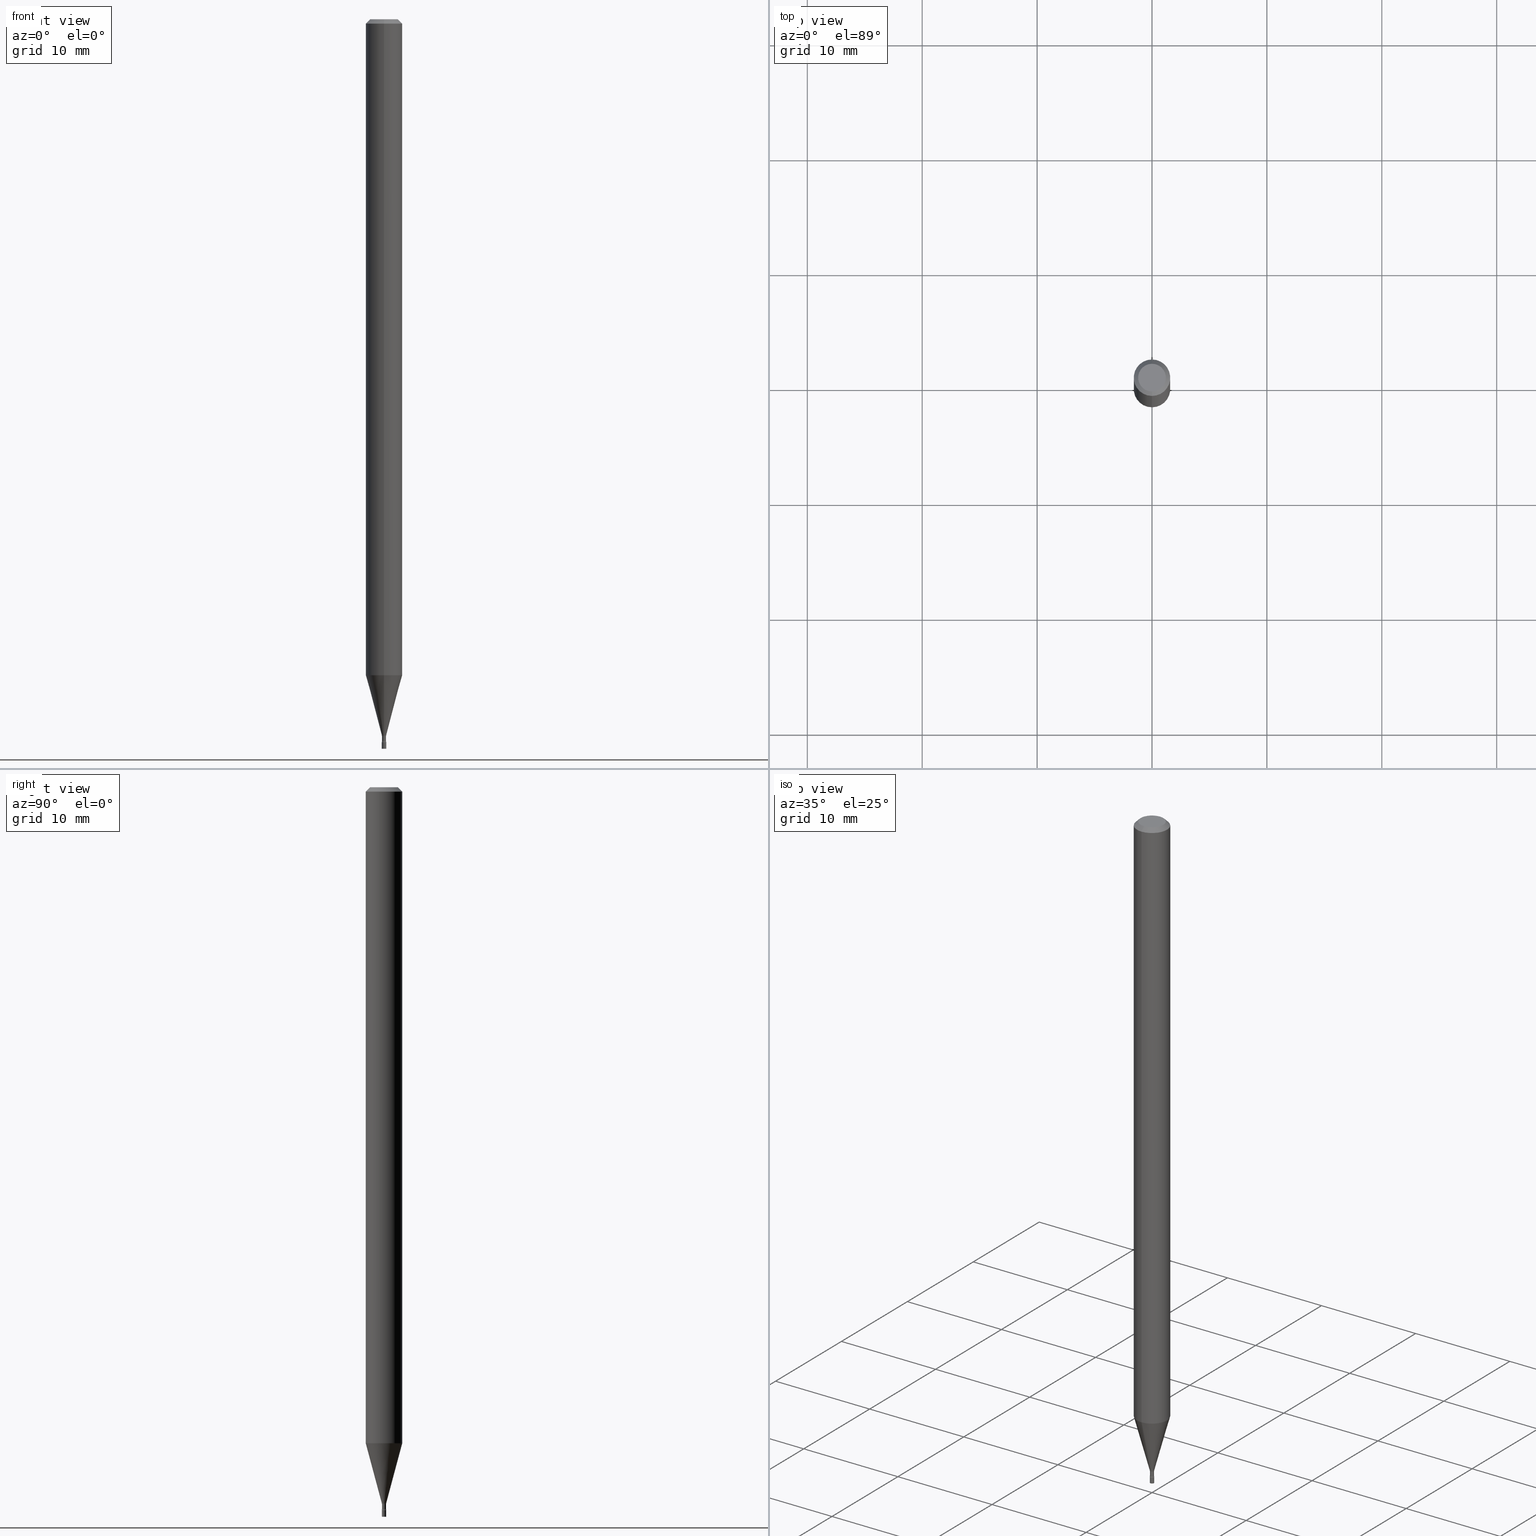
[diagram: canonical four-view strip — front | top / right | iso, engineering-drawing reading convention]
A machine part, canonical four-view strip (front | top / right | iso — engineering-drawing reading convention). The complete STEP part file that produces these views, byte-faithful:
ISO-10303-21;
HEADER;
FILE_DESCRIPTION (( 'STEP AP203' ),
    '1' );
FILE_NAME ('03509.STEP',
    '2024-03-08T21:35:44',
    ( '' ),
    ( '' ),
    'SwSTEP 2.0',
    'SolidWorks 2023',
    '' );
FILE_SCHEMA (( 'CONFIG_CONTROL_DESIGN' ));
ENDSEC;

DATA;
#1 = DIRECTION ( 'NONE',  ( 1.839019923739599526E-15, 0.2588190451025248473, 0.9659258262890670910 ) ) ;
#2 = DATE_TIME_ROLE ( 'creation_date' ) ;
#3 = CARTESIAN_POINT ( 'NONE',  ( 4.440892098501173434E-16, 0.06249999999999213823, -2.248057782720306985 ) ) ;
#4 = DIRECTION ( 'NONE',  ( -6.982962677686265922E-15, -1.000000000000000000, 4.370956789862821150E-15 ) ) ;
#5 = PERSON_AND_ORGANIZATION_ROLE ( 'creator' ) ;
#6 = CYLINDRICAL_SURFACE ( 'NONE', #94, 0.06250000000000000000 ) ;
#7 = CARTESIAN_POINT ( 'NONE',  ( -4.287811248607203282E-16, -0.06250000000000005551, -0.01499999999999981209 ) ) ;
#8 = PERSON_AND_ORGANIZATION_ROLE ( 'creator' ) ;
#9 = AXIS2_PLACEMENT_3D ( 'NONE', #232, #476, #351 ) ;
#10 = AXIS2_PLACEMENT_3D ( 'NONE', #248, #484, #4 ) ;
#11 = ORIENTED_EDGE ( 'NONE', *, *, #130, .T. ) ;
#12 = DIRECTION ( 'NONE',  ( 4.937700262164548042E-15, 0.7071067811865451302, -0.7071067811865499042 ) ) ;
#13 = CARTESIAN_POINT ( 'NONE',  ( 3.668098246410186119E-31, -5.237372321065141338E-17, -0.01500000000000003067 ) ) ;
#14 = FACE_OUTER_BOUND ( 'NONE', #346, .T. ) ;
#15 = ORIENTED_EDGE ( 'NONE', *, *, #254, .T. ) ;
#16 = ORGANIZATION ( 'UNSPECIFIED', 'UNSPECIFIED', '' ) ;
#17 = CARTESIAN_POINT ( 'NONE',  ( -3.773273898774340269E-16, -0.04749999999999999362, 1.369409724778731764E-16 ) ) ;
#18 = EDGE_CURVE ( 'NONE', #502, #281, #208, .T. ) ;
#19 = CIRCLE ( 'NONE', #509, 0.01500000000000001159 ) ;
#20 = DIRECTION ( 'NONE',  ( -2.445398830940119210E-29, 3.491581547376753841E-15, 1.000000000000000000 ) ) ;
#21 = ADVANCED_BREP_SHAPE_REPRESENTATION ( '03509', ( #491, #318, #92 ), #508 ) ;
#22 = CARTESIAN_POINT ( 'NONE',  ( 6.008455200326106592E-29, -8.578481620438001034E-15, -2.456974787463811261 ) ) ;
#23 = EDGE_CURVE ( 'NONE', #31, #498, #295, .T. ) ;
#24 = DIRECTION ( 'NONE',  ( -2.438088387897960049E-29, 3.491481338843145188E-15, 1.000000000000000000 ) ) ;
#25 = AXIS2_PLACEMENT_3D ( 'NONE', #473, #105, #73 ) ;
#26 = VERTEX_POINT ( 'NONE', #39 ) ;
#27 = DIRECTION ( 'NONE',  ( 1.000000000000000000, -6.982962677686265922E-15, 4.876176775795935793E-29 ) ) ;
#28 = ORIENTED_EDGE ( 'NONE', *, *, #169, .T. ) ;
#29 = ADVANCED_FACE ( 'NONE', ( #436 ), #323, .F. ) ;
#30 = DIRECTION ( 'NONE',  ( 7.105427357601001859E-15, 1.000000000000000000, 0.000000000000000000 ) ) ;
#31 = VERTEX_POINT ( 'NONE', #477 ) ;
#32 = CLOSED_SHELL ( 'NONE', ( #38, #489, #167, #274 ) ) ;
#33 = AXIS2_PLACEMENT_3D ( 'NONE', #410, #124, #160 ) ;
#34 = CARTESIAN_POINT ( 'NONE',  ( 1.566746732351625632E-16, 0.02204999999999136817, -2.473353426265656907 ) ) ;
#35 = EDGE_LOOP ( 'NONE', ( #171, #128, #104, #430 ) ) ;
#36 = ORIENTED_EDGE ( 'NONE', *, *, #420, .T. ) ;
#37 = SECURITY_CLASSIFICATION_LEVEL ( 'unclassified' ) ;
#38 = ADVANCED_FACE ( 'NONE', ( #236 ), #395, .T. ) ;
#39 = CARTESIAN_POINT ( 'NONE',  ( -4.922988687762808656E-17, -0.007050000000008578051, -2.456974787463811261 ) ) ;
#40 = DIRECTION ( 'NONE',  ( -2.445398830940119210E-29, 3.491581547376753841E-15, 1.000000000000000000 ) ) ;
#41 = DIRECTION ( 'NONE',  ( -6.982962677686265133E-15, -1.000000000000000000, 0.000000000000000000 ) ) ;
#42 = AXIS2_PLACEMENT_3D ( 'NONE', #259, #461, #97 ) ;
#43 = ORIENTED_EDGE ( 'NONE', *, *, #194, .T. ) ;
#44 = DIRECTION ( 'NONE',  ( -2.445398830940119210E-29, 3.491581547376753841E-15, 1.000000000000000000 ) ) ;
#45 = DIRECTION ( 'NONE',  ( -2.445398830940119210E-29, 3.491581547376753841E-15, 1.000000000000000000 ) ) ;
#46 = ORIENTED_EDGE ( 'NONE', *, *, #154, .T. ) ;
#47 = ORIENTED_EDGE ( 'NONE', *, *, #154, .F. ) ;
#48 = DIRECTION ( 'NONE',  ( -2.445398830940119210E-29, 3.491581547376753841E-15, 1.000000000000000000 ) ) ;
#49 = FACE_OUTER_BOUND ( 'NONE', #411, .T. ) ;
#50 = ORIENTED_EDGE ( 'NONE', *, *, #113, .F. ) ;
#51 = ORIENTED_EDGE ( 'NONE', *, *, #415, .T. ) ;
#52 = LINE ( 'NONE', #212, #322 ) ;
#53 = DIRECTION ( 'NONE',  ( -6.982962677686265922E-15, -1.000000000000000000, 0.000000000000000000 ) ) ;
#54 = ORIENTED_EDGE ( 'NONE', *, *, #194, .F. ) ;
#55 = DIRECTION ( 'NONE',  ( -6.982962677686265922E-15, -1.000000000000000000, 0.000000000000000000 ) ) ;
#56 = AXIS2_PLACEMENT_3D ( 'NONE', #316, #24, #27 ) ;
#57 = DIRECTION ( 'NONE',  ( -6.982962677686265922E-15, -1.000000000000000000, 0.000000000000000000 ) ) ;
#58 = ORIENTED_EDGE ( 'NONE', *, *, #349, .F. ) ;
#59 = EDGE_CURVE ( 'NONE', #261, #203, #303, .T. ) ;
#60 = CC_DESIGN_DATE_AND_TIME_ASSIGNMENT ( #110, #515, ( #357 ) ) ;
#61 = CARTESIAN_POINT ( 'NONE',  ( 0.007499999999999999722, -5.237222008264700526E-17, 3.657132581846952195E-31 ) ) ;
#62 = ORIENTED_EDGE ( 'NONE', *, *, #145, .F. ) ;
#63 = APPLICATION_PROTOCOL_DEFINITION ( 'international standard', 'config_control_design', 1994, #343 ) ;
#64 = ORIENTED_EDGE ( 'NONE', *, *, #113, .T. ) ;
#65 = EDGE_CURVE ( 'NONE', #261, #153, #374, .T. ) ;
#66 = APPLICATION_PROTOCOL_DEFINITION ( 'international standard', 'config_control_design', 1994, #429 ) ;
#67 = FACE_OUTER_BOUND ( 'NONE', #143, .T. ) ;
#68 = EDGE_LOOP ( 'NONE', ( #306, #468, #314, #300 ) ) ;
#69 = CYLINDRICAL_SURFACE ( 'NONE', #9, 0.007049999999999996374 ) ;
#70 = APPROVAL_PERSON_ORGANIZATION ( #287, #76, #448 ) ;
#71 = CIRCLE ( 'NONE', #366, 0.007499999999999999722 ) ;
#72 = AXIS2_PLACEMENT_3D ( 'NONE', #454, #450, #55 ) ;
#73 = DIRECTION ( 'NONE',  ( -6.982962677686266711E-15, -1.000000000000000000, 3.491581547376754236E-15 ) ) ;
#74 = DIRECTION ( 'NONE',  ( -2.445398830940119210E-29, 3.491581547376753841E-15, 1.000000000000000000 ) ) ;
#75 = ADVANCED_FACE ( 'NONE', ( #352 ), #141, .T. ) ;
#76 = APPROVAL ( #399, 'UNSPECIFIED' ) ;
#77 = COORDINATED_UNIVERSAL_TIME_OFFSET ( 5, 0, .BEHIND. ) ;
#78 = CARTESIAN_POINT ( 'NONE',  ( 3.668098246410186119E-31, -5.237372321065141338E-17, -0.01500000000000003067 ) ) ;
#79 = DATE_AND_TIME ( #292, #277 ) ;
#80 = CYLINDRICAL_SURFACE ( 'NONE', #309, 0.007049999999999996374 ) ;
#81 = COORDINATED_UNIVERSAL_TIME_OFFSET ( 5, 0, .BEHIND. ) ;
#82 = CONICAL_SURFACE ( 'NONE', #72, 0.007561112605663981683, 0.2617993877991501850 ) ;
#83 = DIRECTION ( 'NONE',  ( -6.982962677686265922E-15, -1.000000000000000000, 3.483106191921935554E-15 ) ) ;
#84 = ADVANCED_FACE ( 'NONE', ( #243 ), #80, .T. ) ;
#85 = DESIGN_CONTEXT ( 'detailed design', #429, 'design' ) ;
#86 = CARTESIAN_POINT ( 'NONE',  ( 6.057426232920582713E-29, -8.648399276314471045E-15, -2.476999999999999869 ) ) ;
#87 = ADVANCED_FACE ( 'NONE', ( #112 ), #405, .T. ) ;
#88 = CARTESIAN_POINT ( 'NONE',  ( 5.998789536058570030E-29, -8.565172513248719958E-15, -2.453092501787273338 ) ) ;
#89 = VERTEX_POINT ( 'NONE', #444 ) ;
#90 = DIRECTION ( 'NONE',  ( -6.982962677686265922E-15, -1.000000000000000000, 0.000000000000000000 ) ) ;
#91 = FACE_OUTER_BOUND ( 'NONE', #462, .T. ) ;
#92 = AXIS2_PLACEMENT_3D ( 'NONE', #308, #137, #425 ) ;
#93 = DIRECTION ( 'NONE',  ( 2.445398830940119210E-29, -3.491581547376753841E-15, -1.000000000000000000 ) ) ;
#94 = AXIS2_PLACEMENT_3D ( 'NONE', #329, #44, #201 ) ;
#95 = ORIENTED_EDGE ( 'NONE', *, *, #404, .F. ) ;
#96 = VECTOR ( 'NONE', #493, 39.37007874015748143 ) ;
#97 = DIRECTION ( 'NONE',  ( 7.105427357600999492E-15, 1.000000000000000000, 0.000000000000000000 ) ) ;
#98 = DIRECTION ( 'NONE',  ( 1.000000000000000000, -7.105427357601001070E-15, 4.926316735742681182E-29 ) ) ;
#99 = ADVANCED_FACE ( 'NONE', ( #363 ), #6, .T. ) ;
#100 = DIRECTION ( 'NONE',  ( -2.445398830940119210E-29, 3.491581547376753841E-15, 1.000000000000000000 ) ) ;
#101 = AXIS2_PLACEMENT_3D ( 'NONE', #510, #100, #226 ) ;
#102 = PERSON_AND_ORGANIZATION_ROLE ( 'design_owner' ) ;
#103 = VERTEX_POINT ( 'NONE', #3 ) ;
#104 = ORIENTED_EDGE ( 'NONE', *, *, #145, .T. ) ;
#105 = DIRECTION ( 'NONE',  ( -2.445398830940119210E-29, 3.491581547376753841E-15, 1.000000000000000000 ) ) ;
#106 = EDGE_LOOP ( 'NONE', ( #301, #469, #440, #472 ) ) ;
#107 = CC_DESIGN_PERSON_AND_ORGANIZATION_ASSIGNMENT ( #480, #8, ( #220 ) ) ;
#108 = AXIS2_PLACEMENT_3D ( 'NONE', #168, #372, #213 ) ;
#109 = CARTESIAN_POINT ( 'NONE',  ( 5.237222008270756882E-17, 0.007499999999991352126, -2.476999999999999869 ) ) ;
#110 = DATE_AND_TIME ( #189, #231 ) ;
#111 = PERSON_AND_ORGANIZATION_ROLE ( 'classification_officer' ) ;
#112 = FACE_OUTER_BOUND ( 'NONE', #414, .T. ) ;
#113 = EDGE_CURVE ( 'NONE', #434, #498, #320, .T. ) ;
#114 = CARTESIAN_POINT ( 'NONE',  ( 0.000000000000000000, 0.000000000000000000, 0.000000000000000000 ) ) ;
#115 = EDGE_LOOP ( 'NONE', ( #347, #348, #54, #239 ) ) ;
#116 = ADVANCED_FACE ( 'NONE', ( #182 ), #69, .T. ) ;
#117 = FACE_OUTER_BOUND ( 'NONE', #513, .T. ) ;
#118 = CARTESIAN_POINT ( 'NONE',  ( 6.113672015462842613E-29, -8.728703347107864943E-15, -2.500000000000000000 ) ) ;
#119 = EDGE_CURVE ( 'NONE', #89, #103, #459, .T. ) ;
#120 = EDGE_LOOP ( 'NONE', ( #132, #191, #390, #62 ) ) ;
#121 = CC_DESIGN_PERSON_AND_ORGANIZATION_ASSIGNMENT ( #393, #5, ( #307 ) ) ;
#122 = CIRCLE ( 'NONE', #234, 0.007049999999999992904 ) ;
#123 = CC_DESIGN_APPROVAL ( #392, ( #357 ) ) ;
#124 = DIRECTION ( 'NONE',  ( -2.445398830940119210E-29, 3.491581547376753841E-15, 1.000000000000000000 ) ) ;
#125 = CIRCLE ( 'NONE', #108, 0.007561112605663981683 ) ;
#126 = ORIENTED_EDGE ( 'NONE', *, *, #136, .T. ) ;
#127 = FACE_OUTER_BOUND ( 'NONE', #250, .T. ) ;
#128 = ORIENTED_EDGE ( 'NONE', *, *, #385, .T. ) ;
#129 = DIRECTION ( 'NONE',  ( -2.445398830940119210E-29, 3.491581547376753841E-15, 1.000000000000000000 ) ) ;
#130 = EDGE_CURVE ( 'NONE', #434, #294, #71, .T. ) ;
#131 = CARTESIAN_POINT ( 'NONE',  ( -4.922988687762763666E-17, -0.007050000000008629225, -2.473353426265656907 ) ) ;
#132 = ORIENTED_EDGE ( 'NONE', *, *, #65, .T. ) ;
#133 = DIRECTION ( 'NONE',  ( -6.982962677686265133E-15, -1.000000000000000000, 0.000000000000000000 ) ) ;
#134 = CIRCLE ( 'NONE', #431, 0.01500000000000002373 ) ;
#135 = CIRCLE ( 'NONE', #142, 0.06250000000000000000 ) ;
#136 = EDGE_CURVE ( 'NONE', #187, #26, #134, .T. ) ;
#137 = DIRECTION ( 'NONE',  ( 0.000000000000000000, 0.000000000000000000, 1.000000000000000000 ) ) ;
#138 = FACE_OUTER_BOUND ( 'NONE', #106, .T. ) ;
#139 = ORIENTED_EDGE ( 'NONE', *, *, #249, .F. ) ;
#140 = CC_DESIGN_APPROVAL ( #76, ( #307 ) ) ;
#141 = CONICAL_SURFACE ( 'NONE', #443, 0.06250000000000000000, 0.7853981633974483900 ) ;
#142 = AXIS2_PLACEMENT_3D ( 'NONE', #13, #211, #83 ) ;
#143 = EDGE_LOOP ( 'NONE', ( #266, #188 ) ) ;
#144 = EDGE_LOOP ( 'NONE', ( #339, #389 ) ) ;
#145 = EDGE_CURVE ( 'NONE', #261, #26, #52, .T. ) ;
#146 = CARTESIAN_POINT ( 'NONE',  ( 3.316907271900976096E-16, 0.04749999999999999362, -1.803046990116571092E-16 ) ) ;
#147 = DIRECTION ( 'NONE',  ( -2.445398830940118929E-29, 3.491581547376753841E-15, 1.000000000000000000 ) ) ;
#148 = DATE_AND_TIME ( #518, #373 ) ;
#149 = ORIENTED_EDGE ( 'NONE', *, *, #441, .T. ) ;
#150 = CIRCLE ( 'NONE', #290, 0.06250000000000000000 ) ;
#151 = DIRECTION ( 'NONE',  ( -1.000000000000000000, 6.982962677686265922E-15, -4.883557194083112340E-29 ) ) ;
#152 = DIRECTION ( 'NONE',  ( -2.445468806185136597E-29, 3.491481338843145583E-15, 1.000000000000000000 ) ) ;
#153 = VERTEX_POINT ( 'NONE', #403 ) ;
#154 = EDGE_CURVE ( 'NONE', #281, #396, #150, .T. ) ;
#155 = UNCERTAINTY_MEASURE_WITH_UNIT (LENGTH_MEASURE( 1.000000000000000082E-05 ), #426, 'distance_accuracy_value', 'NONE');
#156 = DIRECTION ( 'NONE',  ( -2.445398830940119210E-29, 3.491581547376753841E-15, 1.000000000000000000 ) ) ;
#157 = APPROVAL_STATUS ( 'not_yet_approved' ) ;
#158 = DIRECTION ( 'NONE',  ( -4.851104656540964275E-15, -0.7071067811865500152, -0.7071067811865450192 ) ) ;
#159 = AXIS2_PLACEMENT_3D ( 'NONE', #86, #251, #408 ) ;
#160 = DIRECTION ( 'NONE',  ( -6.982962677686265922E-15, -1.000000000000000000, 3.491581547376753841E-15 ) ) ;
#161 = CC_DESIGN_DATE_AND_TIME_ASSIGNMENT ( #291, #2, ( #220 ) ) ;
#162 = CARTESIAN_POINT ( 'NONE',  ( 6.057426232920582713E-29, -8.648399276314471045E-15, -2.476999999999999869 ) ) ;
#163 = DIRECTION ( 'NONE',  ( -1.807323732225329350E-15, -0.2588190451025180194, 0.9659258262890689783 ) ) ;
#164 = VECTOR ( 'NONE', #12, 39.37007874015748143 ) ;
#165 = DIRECTION ( 'NONE',  ( -2.445468806185136597E-29, 3.491481338843145583E-15, 1.000000000000000000 ) ) ;
#166 = AXIS2_PLACEMENT_3D ( 'NONE', #255, #93, #253 ) ;
#167 = ADVANCED_FACE ( 'NONE', ( #117 ), #483, .T. ) ;
#168 = CARTESIAN_POINT ( 'NONE',  ( 5.998789536058570030E-29, -8.565172513248719958E-15, -2.453092501787273338 ) ) ;
#169 = EDGE_CURVE ( 'NONE', #275, #396, #365, .T. ) ;
#170 = CARTESIAN_POINT ( 'NONE',  ( 5.009326287114752695E-17, 0.007049999999991419901, -2.456974787463811261 ) ) ;
#171 = ORIENTED_EDGE ( 'NONE', *, *, #499, .F. ) ;
#172 = CARTESIAN_POINT ( 'NONE',  ( 6.057252904238674824E-29, -8.648647492852218394E-15, -2.476999999999999869 ) ) ;
#173 = ORIENTED_EDGE ( 'NONE', *, *, #174, .T. ) ;
#174 = EDGE_CURVE ( 'NONE', #89, #396, #447, .T. ) ;
#175 = AXIS2_PLACEMENT_3D ( 'NONE', #22, #215, #377 ) ;
#176 = PRODUCT_DEFINITION_SHAPE ( 'NONE', 'NONE',  #220 ) ;
#177 = ORIENTED_EDGE ( 'NONE', *, *, #418, .T. ) ;
#178 =( LENGTH_UNIT ( ) NAMED_UNIT ( * ) SI_UNIT ( $, .METRE. ) );
#179 = EDGE_LOOP ( 'NONE', ( #272, #516 ) ) ;
#180 = VERTEX_POINT ( 'NONE', #449 ) ;
#181 = PERSON_AND_ORGANIZATION ( #417, #16 ) ;
#182 = FACE_OUTER_BOUND ( 'NONE', #35, .T. ) ;
#183 = ORIENTED_EDGE ( 'NONE', *, *, #217, .F. ) ;
#184 = AXIS2_PLACEMENT_3D ( 'NONE', #204, #156, #400 ) ;
#185 = EDGE_CURVE ( 'NONE', #498, #31, #311, .T. ) ;
#186 = DIRECTION ( 'NONE',  ( -2.445398830940119210E-29, 3.491581547376753841E-15, 1.000000000000000000 ) ) ;
#187 = VERTEX_POINT ( 'NONE', #369 ) ;
#188 = ORIENTED_EDGE ( 'NONE', *, *, #463, .T. ) ;
#189 = CALENDAR_DATE ( 2024, 8, 3 ) ;
#190 = DIRECTION ( 'NONE',  ( 1.000000000000000000, -6.982962677686268288E-15, 0.000000000000000000 ) ) ;
#191 = ORIENTED_EDGE ( 'NONE', *, *, #499, .T. ) ;
#192 = CARTESIAN_POINT ( 'NONE',  ( -1.539743270429217150E-16, -0.02205000000000863908, -2.473353426265656907 ) ) ;
#193 = AXIS2_PLACEMENT_3D ( 'NONE', #146, #268, #512 ) ;
#194 = EDGE_CURVE ( 'NONE', #396, #281, #135, .T. ) ;
#195 = CARTESIAN_POINT ( 'NONE',  ( 0.000000000000000000, 0.000000000000000000, 0.000000000000000000 ) ) ;
#196 = AXIS2_PLACEMENT_3D ( 'NONE', #109, #147, #438 ) ;
#197 = VECTOR ( 'NONE', #428, 39.37007874015748143 ) ;
#198 = DIRECTION ( 'NONE',  ( -2.445468806185136597E-29, 3.491481338843145583E-15, 1.000000000000000000 ) ) ;
#199 = PERSON_AND_ORGANIZATION_ROLE ( 'design_supplier' ) ;
#200 = EDGE_CURVE ( 'NONE', #103, #281, #412, .T. ) ;
#201 = DIRECTION ( 'NONE',  ( -6.982962677686265922E-15, -1.000000000000000000, 3.491581547376753447E-15 ) ) ;
#202 = COORDINATED_UNIVERSAL_TIME_OFFSET ( 5, 0, .BEHIND. ) ;
#203 = VERTEX_POINT ( 'NONE', #289 ) ;
#204 = CARTESIAN_POINT ( 'NONE',  ( 0.000000000000000000, 0.000000000000000000, 0.000000000000000000 ) ) ;
#205 = AXIS2_PLACEMENT_3D ( 'NONE', #238, #278, #435 ) ;
#206 = AXIS2_PLACEMENT_3D ( 'NONE', #401, #501, #53 ) ;
#207 = CC_DESIGN_PERSON_AND_ORGANIZATION_ASSIGNMENT ( #324, #111, ( #357 ) ) ;
#208 = LINE ( 'NONE', #342, #164 ) ;
#209 = FACE_OUTER_BOUND ( 'NONE', #144, .T. ) ;
#210 = ORIENTED_EDGE ( 'NONE', *, *, #18, .F. ) ;
#211 = DIRECTION ( 'NONE',  ( -2.445398830940119210E-29, 3.491581547376753841E-15, 1.000000000000000000 ) ) ;
#212 = CARTESIAN_POINT ( 'NONE',  ( -4.922988687768814476E-17, -0.007049999999999996374, 2.461564990900609988E-17 ) ) ;
#213 = DIRECTION ( 'NONE',  ( -6.982962677686265922E-15, -1.000000000000000000, 0.000000000000000000 ) ) ;
#214 = ORIENTED_EDGE ( 'NONE', *, *, #65, .F. ) ;
#215 = DIRECTION ( 'NONE',  ( -2.445398830940119210E-29, 3.491581547376753841E-15, 1.000000000000000000 ) ) ;
#216 = AXIS2_PLACEMENT_3D ( 'NONE', #297, #338, #497 ) ;
#217 = EDGE_CURVE ( 'NONE', #103, #89, #382, .T. ) ;
#218 = FACE_OUTER_BOUND ( 'NONE', #68, .T. ) ;
#219 = EDGE_LOOP ( 'NONE', ( #520, #394, #451, #46 ) ) ;
#220 = PRODUCT_DEFINITION ( 'UNKNOWN', '', #307, #85 ) ;
#221 = CARTESIAN_POINT ( 'NONE',  ( 7.069440411394816153E-46, -1.009386582605677857E-31, -2.890915102252261774E-17 ) ) ;
#222 = ORIENTED_EDGE ( 'NONE', *, *, #136, .F. ) ;
#223 = TOROIDAL_SURFACE ( 'NONE', #33, 0.02205000000000000016, 0.01500000000000002373 ) ;
#224 = MECHANICAL_CONTEXT ( 'NONE', #343, 'mechanical' ) ;
#225 = ORIENTED_EDGE ( 'NONE', *, *, #415, .F. ) ;
#226 = DIRECTION ( 'NONE',  ( -6.982962677686265922E-15, -1.000000000000000000, 3.491581547376753841E-15 ) ) ;
#227 = DIRECTION ( 'NONE',  ( -2.445468806185136877E-29, 3.491481338843145188E-15, 1.000000000000000000 ) ) ;
#228 = EDGE_CURVE ( 'NONE', #180, #187, #460, .T. ) ;
#229 = APPROVAL_ROLE ( '' ) ;
#230 = EDGE_LOOP ( 'NONE', ( #358, #58 ) ) ;
#231 = LOCAL_TIME ( 16, 35, 44.00000000000000000, #202 ) ;
#232 = CARTESIAN_POINT ( 'NONE',  ( 0.000000000000000000, 0.000000000000000000, 0.000000000000000000 ) ) ;
#233 = AXIS2_PLACEMENT_3D ( 'NONE', #355, #398, #41 ) ;
#234 = AXIS2_PLACEMENT_3D ( 'NONE', #376, #503, #133 ) ;
#235 = CARTESIAN_POINT ( 'NONE',  ( 5.009326287108702501E-17, 0.007049999999999996374, -2.461564990900609988E-17 ) ) ;
#236 = FACE_OUTER_BOUND ( 'NONE', #321, .T. ) ;
#237 = EDGE_CURVE ( 'NONE', #502, #275, #359, .T. ) ;
#238 = CARTESIAN_POINT ( 'NONE',  ( 5.497397873750074245E-29, -7.849277071582922133E-15, -2.248057782720306541 ) ) ;
#239 = ORIENTED_EDGE ( 'NONE', *, *, #174, .F. ) ;
#240 = DIRECTION ( 'NONE',  ( -6.982962677686265922E-15, -1.000000000000000000, 3.483106191921935554E-15 ) ) ;
#241 = DIRECTION ( 'NONE',  ( -6.982962677686264344E-15, -1.000000000000000000, 0.000000000000000000 ) ) ;
#242 = DATE_AND_TIME ( #317, #494 ) ;
#243 = FACE_OUTER_BOUND ( 'NONE', #120, .T. ) ;
#244 = AXIS2_PLACEMENT_3D ( 'NONE', #340, #332, #341 ) ;
#245 = COORDINATED_UNIVERSAL_TIME_OFFSET ( 5, 0, .BEHIND. ) ;
#246 = DIRECTION ( 'NONE',  ( -6.982962677686265133E-15, -1.000000000000000000, 3.491581547376753447E-15 ) ) ;
#247 = LINE ( 'NONE', #286, #304 ) ;
#248 = CARTESIAN_POINT ( 'NONE',  ( 5.497397873750074245E-29, -7.849277071582922133E-15, -2.248057782720306541 ) ) ;
#249 = EDGE_CURVE ( 'NONE', #180, #103, #247, .T. ) ;
#250 = EDGE_LOOP ( 'NONE', ( #139, #260, #310, #183 ) ) ;
#251 = DIRECTION ( 'NONE',  ( -2.445468806185136597E-29, 3.491481338843145583E-15, 1.000000000000000000 ) ) ;
#252 = CONICAL_SURFACE ( 'NONE', #296, 0.007561112605663981683, 0.2617993877991501850 ) ;
#253 = DIRECTION ( 'NONE',  ( 6.982962677686265922E-15, 1.000000000000000000, -3.483106191921935554E-15 ) ) ;
#254 = EDGE_CURVE ( 'NONE', #26, #313, #433, .T. ) ;
#255 = CARTESIAN_POINT ( 'NONE',  ( 3.668098246410186119E-31, -5.237372321065141338E-17, -0.01500000000000003067 ) ) ;
#256 = CARTESIAN_POINT ( 'NONE',  ( -5.279896712707474970E-17, -0.007561112605672546880, -2.453092501787273338 ) ) ;
#257 = APPROVAL_PERSON_ORGANIZATION ( #181, #500, #229 ) ;
#258 = VECTOR ( 'NONE', #227, 39.37007874015748143 ) ;
#259 = CARTESIAN_POINT ( 'NONE',  ( 1.566746732351621441E-16, 0.02204999999999142021, -2.456974787463811261 ) ) ;
#260 = ORIENTED_EDGE ( 'NONE', *, *, #228, .T. ) ;
#261 = VERTEX_POINT ( 'NONE', #131 ) ;
#262 = DIRECTION ( 'NONE',  ( 1.000000000000000000, -6.982962677686268288E-15, 0.000000000000000000 ) ) ;
#263 = DIRECTION ( 'NONE',  ( -6.982962677686266711E-15, -1.000000000000000000, 3.491581547376754236E-15 ) ) ;
#264 = CARTESIAN_POINT ( 'NONE',  ( 3.840629472727447874E-16, 0.04749999999999999362, -1.947592745229184119E-16 ) ) ;
#265 = AXIS2_PLACEMENT_3D ( 'NONE', #162, #333, #283 ) ;
#266 = ORIENTED_EDGE ( 'NONE', *, *, #237, .T. ) ;
#267 = AXIS2_PLACEMENT_3D ( 'NONE', #172, #74, #465 ) ;
#268 = DIRECTION ( 'NONE',  ( 2.445398830940118929E-29, -3.491581547376753841E-15, -1.000000000000000000 ) ) ;
#269 = VERTEX_POINT ( 'NONE', #371 ) ;
#270 = ADVANCED_FACE ( 'NONE', ( #91 ), #504, .F. ) ;
#271 = LENGTH_MEASURE_WITH_UNIT ( LENGTH_MEASURE( 0.02539999999999999897 ), #178 );
#272 = ORIENTED_EDGE ( 'NONE', *, *, #23, .T. ) ;
#273 = CARTESIAN_POINT ( 'NONE',  ( -0.007499999999999999722, 5.329070518200751197E-17, -3.689201317691179266E-31 ) ) ;
#274 = ADVANCED_FACE ( 'NONE', ( #209 ), #302, .T. ) ;
#275 = VERTEX_POINT ( 'NONE', #17 ) ;
#276 = LINE ( 'NONE', #235, #421 ) ;
#277 = LOCAL_TIME ( 16, 35, 44.00000000000000000, #245 ) ;
#278 = DIRECTION ( 'NONE',  ( -2.445398830940119210E-29, 3.491581547376753841E-15, 1.000000000000000000 ) ) ;
#279 = CIRCLE ( 'NONE', #344, 0.007049999999999998976 ) ;
#280 = DIRECTION ( 'NONE',  ( 1.000000000000000000, -6.982962677686267499E-15, 4.876176775795936353E-29 ) ) ;
#281 = VERTEX_POINT ( 'NONE', #416 ) ;
#282 = EDGE_CURVE ( 'NONE', #187, #89, #379, .T. ) ;
#283 = DIRECTION ( 'NONE',  ( 1.000000000000000000, -6.982962677686268288E-15, 0.000000000000000000 ) ) ;
#284 = APPROVAL_ROLE ( '' ) ;
#285 = DIRECTION ( 'NONE',  ( -2.445398830940119210E-29, 3.491581547376753841E-15, 1.000000000000000000 ) ) ;
#286 = CARTESIAN_POINT ( 'NONE',  ( 5.372493636224662941E-17, 0.007561112605655417353, -2.453092501787273338 ) ) ;
#287 = PERSON_AND_ORGANIZATION ( #417, #16 ) ;
#288 = DIRECTION ( 'NONE',  ( 1.000000000000000000, -6.982962677686267499E-15, 4.876176775795936353E-29 ) ) ;
#289 = CARTESIAN_POINT ( 'NONE',  ( -5.237222008258647251E-17, -0.007500000000008654258, -2.476999999999999869 ) ) ;
#290 = AXIS2_PLACEMENT_3D ( 'NONE', #78, #45, #240 ) ;
#291 = DATE_AND_TIME ( #353, #458 ) ;
#292 = CALENDAR_DATE ( 2024, 8, 3 ) ;
#293 = DIRECTION ( 'NONE',  ( 2.438088387897960049E-29, -3.491481338843145188E-15, -1.000000000000000000 ) ) ;
#294 = VERTEX_POINT ( 'NONE', #456 ) ;
#295 = CIRCLE ( 'NONE', #265, 0.007499999999999999722 ) ;
#296 = AXIS2_PLACEMENT_3D ( 'NONE', #88, #453, #90 ) ;
#297 = CARTESIAN_POINT ( 'NONE',  ( 6.057252904238674824E-29, -8.648647492852218394E-15, -2.476999999999999869 ) ) ;
#298 = ADVANCED_FACE ( 'NONE', ( #218 ), #82, .T. ) ;
#299 = FACE_OUTER_BOUND ( 'NONE', #406, .T. ) ;
#300 = ORIENTED_EDGE ( 'NONE', *, *, #282, .F. ) ;
#301 = ORIENTED_EDGE ( 'NONE', *, *, #385, .F. ) ;
#302 = PLANE ( 'NONE',  #452 ) ;
#303 = CIRCLE ( 'NONE', #495, 0.01500000000000001159 ) ;
#304 = VECTOR ( 'NONE', #1, 39.37007874015748143 ) ;
#305 = CARTESIAN_POINT ( 'NONE',  ( 6.008283272913352348E-29, -8.578727830278565783E-15, -2.456974787463811261 ) ) ;
#306 = ORIENTED_EDGE ( 'NONE', *, *, #404, .T. ) ;
#307 = PRODUCT_DEFINITION_FORMATION_WITH_SPECIFIED_SOURCE ( 'ANY', '', #409, .NOT_KNOWN. ) ;
#308 = CARTESIAN_POINT ( 'NONE',  ( 0.000000000000000000, 0.000000000000000000, 0.000000000000000000 ) ) ;
#309 = AXIS2_PLACEMENT_3D ( 'NONE', #114, #285, #246 ) ;
#310 = ORIENTED_EDGE ( 'NONE', *, *, #282, .T. ) ;
#311 = CIRCLE ( 'NONE', #159, 0.007499999999999999722 ) ;
#312 = CARTESIAN_POINT ( 'NONE',  ( -0.007499999999999999722, -8.635260606529160038E-15, -2.476999999999999869 ) ) ;
#313 = VERTEX_POINT ( 'NONE', #170 ) ;
#314 = ORIENTED_EDGE ( 'NONE', *, *, #119, .F. ) ;
#315 = DIRECTION ( 'NONE',  ( -6.982962677686265922E-15, -1.000000000000000000, 0.000000000000000000 ) ) ;
#316 = CARTESIAN_POINT ( 'NONE',  ( 6.057426232920582713E-29, -8.648399276314471045E-15, -2.476999999999999869 ) ) ;
#317 = CALENDAR_DATE ( 2024, 8, 3 ) ;
#318 = MANIFOLD_SOLID_BREP ( 'Body-Move/Copy2[2]', #422 ) ;
#319 = CC_DESIGN_APPROVAL ( #500, ( #220 ) ) ;
#320 = LINE ( 'NONE', #273, #258 ) ;
#321 = EDGE_LOOP ( 'NONE', ( #177, #64, #380, #378 ) ) ;
#322 = VECTOR ( 'NONE', #129, 39.37007874015748143 ) ;
#323 = PLANE ( 'NONE',  #196 ) ;
#324 = PERSON_AND_ORGANIZATION ( #417, #16 ) ;
#325 = CARTESIAN_POINT ( 'NONE',  ( 6.113672015462842613E-29, -8.728703347107864943E-15, -2.500000000000000000 ) ) ;
#326 = PERSON_AND_ORGANIZATION ( #417, #16 ) ;
#327 = DIRECTION ( 'NONE',  ( 6.982962677686265922E-15, 1.000000000000000000, -3.483106191921935554E-15 ) ) ;
#328 = APPROVAL_DATE_TIME ( #148, #392 ) ;
#329 = CARTESIAN_POINT ( 'NONE',  ( 0.000000000000000000, 0.000000000000000000, 0.000000000000000000 ) ) ;
#330 = AXIS2_PLACEMENT_3D ( 'NONE', #195, #487, #288 ) ;
#331 = CARTESIAN_POINT ( 'NONE',  ( -4.364351673553916201E-16, -0.06250000000000000000, 2.182238467110470904E-16 ) ) ;
#332 = DIRECTION ( 'NONE',  ( -2.445398830940119210E-29, 3.491581547376753841E-15, 1.000000000000000000 ) ) ;
#333 = DIRECTION ( 'NONE',  ( -2.445468806185136597E-29, 3.491481338843145583E-15, 1.000000000000000000 ) ) ;
#334 = CARTESIAN_POINT ( 'NONE',  ( 4.440892098500625669E-16, 0.06250000000000000000, -2.182238467110470904E-16 ) ) ;
#335 = DIRECTION ( 'NONE',  ( -1.000000000000000000, 6.982962677686265922E-15, -4.876176775795935793E-29 ) ) ;
#336 = ADVANCED_FACE ( 'NONE', ( #14 ), #223, .F. ) ;
#337 = TOROIDAL_SURFACE ( 'NONE', #101, 0.02205000000000000362, 0.01500000000000001159 ) ;
#338 = DIRECTION ( 'NONE',  ( -2.445398830940119210E-29, 3.491581547376753841E-15, 1.000000000000000000 ) ) ;
#339 = ORIENTED_EDGE ( 'NONE', *, *, #418, .F. ) ;
#340 = CARTESIAN_POINT ( 'NONE',  ( 6.048508650603792991E-29, -8.635667332170297409E-15, -2.473353426265656907 ) ) ;
#341 = DIRECTION ( 'NONE',  ( -6.982962677686265922E-15, -1.000000000000000000, 3.491581547376753841E-15 ) ) ;
#342 = CARTESIAN_POINT ( 'NONE',  ( 4.364351673553919652E-16, 0.06249999999999995143, -0.01500000000000024751 ) ) ;
#343 = APPLICATION_CONTEXT ( 'configuration controlled 3d designs of mechanical parts and assemblies' ) ;
#344 = AXIS2_PLACEMENT_3D ( 'NONE', #305, #20, #57 ) ;
#345 = CARTESIAN_POINT ( 'NONE',  ( -0.007499999999999999722, -8.635260606529160038E-15, -2.500000000000000000 ) ) ;
#346 = EDGE_LOOP ( 'NONE', ( #427, #51, #457, #222 ) ) ;
#347 = ORIENTED_EDGE ( 'NONE', *, *, #119, .T. ) ;
#348 = ORIENTED_EDGE ( 'NONE', *, *, #200, .T. ) ;
#349 = EDGE_CURVE ( 'NONE', #269, #203, #388, .T. ) ;
#350 = ORIENTED_EDGE ( 'NONE', *, *, #185, .F. ) ;
#351 = DIRECTION ( 'NONE',  ( -6.982962677686265133E-15, -1.000000000000000000, 3.491581547376753447E-15 ) ) ;
#352 = FACE_OUTER_BOUND ( 'NONE', #219, .T. ) ;
#353 = CALENDAR_DATE ( 2024, 8, 3 ) ;
#354 = DIRECTION ( 'NONE',  ( -1.000000000000000000, 6.982962677686265922E-15, -4.883557194083112340E-29 ) ) ;
#355 = CARTESIAN_POINT ( 'NONE',  ( 6.048335577091776257E-29, -8.635915183290238056E-15, -2.473353426265656907 ) ) ;
#356 = VECTOR ( 'NONE', #163, 39.37007874015749564 ) ;
#357 = SECURITY_CLASSIFICATION ( '', '', #37 ) ;
#358 = ORIENTED_EDGE ( 'NONE', *, *, #441, .F. ) ;
#359 = CIRCLE ( 'NONE', #25, 0.04749999999999999362 ) ;
#360 = CARTESIAN_POINT ( 'NONE',  ( 0.000000000000000000, 0.000000000000000000, 0.000000000000000000 ) ) ;
#361 = APPROVAL_DATE_TIME ( #242, #500 ) ;
#362 = PERSON_AND_ORGANIZATION ( #417, #16 ) ;
#363 = FACE_OUTER_BOUND ( 'NONE', #115, .T. ) ;
#364 = ADVANCED_FACE ( 'NONE', ( #127 ), #252, .T. ) ;
#365 = LINE ( 'NONE', #7, #367 ) ;
#366 = AXIS2_PLACEMENT_3D ( 'NONE', #325, #152, #190 ) ;
#367 = VECTOR ( 'NONE', #158, 39.37007874015748143 ) ;
#368 = ADVANCED_FACE ( 'NONE', ( #299 ), #407, .T. ) ;
#369 = CARTESIAN_POINT ( 'NONE',  ( -5.279896712707474970E-17, -0.007561112605672546880, -2.453092501787273338 ) ) ;
#370 = ADVANCED_FACE ( 'NONE', ( #49 ), #375, .F. ) ;
#371 = CARTESIAN_POINT ( 'NONE',  ( 5.329070518206810018E-17, 0.007499999999991355595, -2.476999999999999869 ) ) ;
#372 = DIRECTION ( 'NONE',  ( -2.445398830940119210E-29, 3.491581547376753841E-15, 1.000000000000000000 ) ) ;
#373 = LOCAL_TIME ( 16, 35, 44.00000000000000000, #81 ) ;
#374 = CIRCLE ( 'NONE', #233, 0.007049999999999992904 ) ;
#375 = TOROIDAL_SURFACE ( 'NONE', #244, 0.02205000000000000362, 0.01500000000000001159 ) ;
#376 = CARTESIAN_POINT ( 'NONE',  ( 6.048335577091776257E-29, -8.635915183290238056E-15, -2.473353426265656907 ) ) ;
#377 = DIRECTION ( 'NONE',  ( -6.982962677686265922E-15, -1.000000000000000000, 3.491581547376753841E-15 ) ) ;
#378 = ORIENTED_EDGE ( 'NONE', *, *, #420, .F. ) ;
#379 = LINE ( 'NONE', #256, #356 ) ;
#380 = ORIENTED_EDGE ( 'NONE', *, *, #23, .F. ) ;
#381 = APPROVAL_PERSON_ORGANIZATION ( #362, #392, #284 ) ;
#382 = CIRCLE ( 'NONE', #10, 0.06250000000000000000 ) ;
#383 = PLANE ( 'NONE',  #56 ) ;
#384 = ORIENTED_EDGE ( 'NONE', *, *, #200, .F. ) ;
#385 = EDGE_CURVE ( 'NONE', #153, #261, #122, .T. ) ;
#386 = FACE_OUTER_BOUND ( 'NONE', #179, .T. ) ;
#387 = DIRECTION ( 'NONE',  ( -2.445398830940119210E-29, 3.491581547376753841E-15, 1.000000000000000000 ) ) ;
#388 = CIRCLE ( 'NONE', #216, 0.007499999999999999722 ) ;
#389 = ORIENTED_EDGE ( 'NONE', *, *, #130, .F. ) ;
#390 = ORIENTED_EDGE ( 'NONE', *, *, #254, .F. ) ;
#391 = EDGE_CURVE ( 'NONE', #313, #26, #279, .T. ) ;
#392 = APPROVAL ( #157, 'UNSPECIFIED' ) ;
#393 = PERSON_AND_ORGANIZATION ( #417, #16 ) ;
#394 = ORIENTED_EDGE ( 'NONE', *, *, #237, .F. ) ;
#395 = CYLINDRICAL_SURFACE ( 'NONE', #466, 0.007499999999999999722 ) ;
#396 = VERTEX_POINT ( 'NONE', #413 ) ;
#397 = CARTESIAN_POINT ( 'NONE',  ( 5.998789536058570030E-29, -8.565172513248719958E-15, -2.453092501787273338 ) ) ;
#398 = DIRECTION ( 'NONE',  ( -2.445398830940119210E-29, 3.491581547376753841E-15, 1.000000000000000000 ) ) ;
#399 = APPROVAL_STATUS ( 'not_yet_approved' ) ;
#400 = DIRECTION ( 'NONE',  ( -6.982962677686265922E-15, -1.000000000000000000, 3.491581547376753447E-15 ) ) ;
#401 = CARTESIAN_POINT ( 'NONE',  ( 6.008283272913352348E-29, -8.578727830278565783E-15, -2.456974787463811261 ) ) ;
#402 = CIRCLE ( 'NONE', #467, 0.04749999999999999362 ) ;
#403 = CARTESIAN_POINT ( 'NONE',  ( 5.169198402660781048E-17, 0.007049999999991356583, -2.473353426265656907 ) ) ;
#404 = EDGE_CURVE ( 'NONE', #187, #180, #125, .T. ) ;
#405 = CYLINDRICAL_SURFACE ( 'NONE', #184, 0.06250000000000000000 ) ;
#406 = EDGE_LOOP ( 'NONE', ( #507, #28, #43, #210 ) ) ;
#407 = CONICAL_SURFACE ( 'NONE', #166, 0.06250000000000000000, 0.7853981633974483900 ) ;
#408 = DIRECTION ( 'NONE',  ( 1.000000000000000000, -6.982962677686268288E-15, 0.000000000000000000 ) ) ;
#409 = PRODUCT ( '03509', '03509', '', ( #224 ) ) ;
#410 = CARTESIAN_POINT ( 'NONE',  ( 6.008455200326106592E-29, -8.578481620438001034E-15, -2.456974787463811261 ) ) ;
#411 = EDGE_LOOP ( 'NONE', ( #475, #214, #479, #149 ) ) ;
#412 = LINE ( 'NONE', #334, #96 ) ;
#413 = CARTESIAN_POINT ( 'NONE',  ( -4.364351673553912750E-16, -0.06250000000000005551, -0.01499999999999981209 ) ) ;
#414 = EDGE_LOOP ( 'NONE', ( #384, #511, #173, #47 ) ) ;
#415 = EDGE_CURVE ( 'NONE', #180, #313, #478, .T. ) ;
#416 = CARTESIAN_POINT ( 'NONE',  ( 4.440892098501179350E-16, 0.06249999999999995837, -0.01500000000000024751 ) ) ;
#417 = PERSON ( 'UNSPECIFIED', 'UNSPECIFIED', 'UNSPECIFIED', ('UNSPECIFIED'), ('UNSPECIFIED'), ('UNSPECIFIED') ) ;
#418 = EDGE_CURVE ( 'NONE', #294, #434, #519, .T. ) ;
#419 = LINE ( 'NONE', #61, #197 ) ;
#420 = EDGE_CURVE ( 'NONE', #294, #31, #419, .T. ) ;
#421 = VECTOR ( 'NONE', #387, 39.37007874015748143 ) ;
#422 = CLOSED_SHELL ( 'NONE', ( #336, #84, #455, #368, #99, #298, #364, #87, #75, #517, #29, #370, #116, #270 ) ) ;
#423 = AXIS2_PLACEMENT_3D ( 'NONE', #118, #165, #262 ) ;
#424 = CC_DESIGN_PERSON_AND_ORGANIZATION_ASSIGNMENT ( #464, #102, ( #409 ) ) ;
#425 = DIRECTION ( 'NONE',  ( 1.000000000000000000, 0.000000000000000000, 0.000000000000000000 ) ) ;
#426 =( CONVERSION_BASED_UNIT ( 'INCH', #271 ) LENGTH_UNIT ( ) NAMED_UNIT ( #481 ) );
#427 = ORIENTED_EDGE ( 'NONE', *, *, #228, .F. ) ;
#428 = DIRECTION ( 'NONE',  ( -2.445468806185136877E-29, 3.491481338843145188E-15, 1.000000000000000000 ) ) ;
#429 = APPLICATION_CONTEXT ( 'configuration controlled 3d designs of mechanical parts and assemblies' ) ;
#430 = ORIENTED_EDGE ( 'NONE', *, *, #391, .F. ) ;
#431 = AXIS2_PLACEMENT_3D ( 'NONE', #482, #354, #439 ) ;
#432 =( NAMED_UNIT ( * ) PLANE_ANGLE_UNIT ( ) SI_UNIT ( $, .RADIAN. ) );
#433 = CIRCLE ( 'NONE', #206, 0.007049999999999998976 ) ;
#434 = VERTEX_POINT ( 'NONE', #345 ) ;
#435 = DIRECTION ( 'NONE',  ( -6.982962677686265922E-15, -1.000000000000000000, 4.370956789862821150E-15 ) ) ;
#436 = FACE_OUTER_BOUND ( 'NONE', #230, .T. ) ;
#437 = COORDINATED_UNIVERSAL_TIME_OFFSET ( 5, 0, .BEHIND. ) ;
#438 = DIRECTION ( 'NONE',  ( -6.982962677686265922E-15, -1.000000000000000000, 3.491581547376753841E-15 ) ) ;
#439 = DIRECTION ( 'NONE',  ( -6.982962677686266711E-15, -1.000000000000000000, 0.000000000000000000 ) ) ;
#440 = ORIENTED_EDGE ( 'NONE', *, *, #349, .T. ) ;
#441 = EDGE_CURVE ( 'NONE', #203, #269, #496, .T. ) ;
#442 = CC_DESIGN_SECURITY_CLASSIFICATION ( #357, ( #307 ) ) ;
#443 = AXIS2_PLACEMENT_3D ( 'NONE', #514, #486, #327 ) ;
#444 = CARTESIAN_POINT ( 'NONE',  ( -4.364351673553366464E-16, -0.06250000000000784095, -2.248057782720306097 ) ) ;
#445 = VECTOR ( 'NONE', #48, 39.37007874015748143 ) ;
#446 = APPROVAL_DATE_TIME ( #79, #76 ) ;
#447 = LINE ( 'NONE', #331, #445 ) ;
#448 = APPROVAL_ROLE ( '' ) ;
#449 = CARTESIAN_POINT ( 'NONE',  ( 2.489070731061822360E-16, 0.007561112605655418220, -2.453092501787273338 ) ) ;
#450 = DIRECTION ( 'NONE',  ( -2.445398830940119210E-29, 3.491581547376753841E-15, 1.000000000000000000 ) ) ;
#451 = ORIENTED_EDGE ( 'NONE', *, *, #18, .T. ) ;
#452 = AXIS2_PLACEMENT_3D ( 'NONE', #492, #293, #335 ) ;
#453 = DIRECTION ( 'NONE',  ( -2.445398830940119210E-29, 3.491581547376753841E-15, 1.000000000000000000 ) ) ;
#454 = CARTESIAN_POINT ( 'NONE',  ( 5.998789536058570030E-29, -8.565172513248719958E-15, -2.453092501787273338 ) ) ;
#455 = ADVANCED_FACE ( 'NONE', ( #138 ), #337, .F. ) ;
#456 = CARTESIAN_POINT ( 'NONE',  ( 0.007499999999999999722, -8.781075567190511627E-15, -2.500000000000000000 ) ) ;
#457 = ORIENTED_EDGE ( 'NONE', *, *, #391, .T. ) ;
#458 = LOCAL_TIME ( 16, 35, 44.00000000000000000, #437 ) ;
#459 = CIRCLE ( 'NONE', #205, 0.06250000000000000000 ) ;
#460 = CIRCLE ( 'NONE', #488, 0.007561112605663981683 ) ;
#461 = DIRECTION ( 'NONE',  ( 1.000000000000000000, -7.105427357601001070E-15, 4.926316735742681182E-29 ) ) ;
#462 = EDGE_LOOP ( 'NONE', ( #225, #95, #126, #15 ) ) ;
#463 = EDGE_CURVE ( 'NONE', #275, #502, #402, .T. ) ;
#464 = PERSON_AND_ORGANIZATION ( #417, #16 ) ;
#465 = DIRECTION ( 'NONE',  ( -6.982962677686265922E-15, -1.000000000000000000, 0.000000000000000000 ) ) ;
#466 = AXIS2_PLACEMENT_3D ( 'NONE', #360, #198, #280 ) ;
#467 = AXIS2_PLACEMENT_3D ( 'NONE', #221, #186, #263 ) ;
#468 = ORIENTED_EDGE ( 'NONE', *, *, #249, .T. ) ;
#469 = ORIENTED_EDGE ( 'NONE', *, *, #470, .T. ) ;
#470 = EDGE_CURVE ( 'NONE', #153, #269, #19, .T. ) ;
#471 = APPROVAL_STATUS ( 'not_yet_approved' ) ;
#472 = ORIENTED_EDGE ( 'NONE', *, *, #59, .F. ) ;
#473 = CARTESIAN_POINT ( 'NONE',  ( 7.069440411394816153E-46, -1.009386582605677857E-31, -2.890915102252261774E-17 ) ) ;
#474 = PLANE ( 'NONE',  #193 ) ;
#475 = ORIENTED_EDGE ( 'NONE', *, *, #470, .F. ) ;
#476 = DIRECTION ( 'NONE',  ( -2.445398830940119210E-29, 3.491581547376753841E-15, 1.000000000000000000 ) ) ;
#477 = CARTESIAN_POINT ( 'NONE',  ( 0.007499999999999999722, -8.700771496397117730E-15, -2.476999999999999869 ) ) ;
#478 = CIRCLE ( 'NONE', #42, 0.01500000000000002373 ) ;
#479 = ORIENTED_EDGE ( 'NONE', *, *, #59, .T. ) ;
#480 = PERSON_AND_ORGANIZATION ( #417, #16 ) ;
#481 = DIMENSIONAL_EXPONENTS ( 1.000000000000000000, 0.000000000000000000, 0.000000000000000000, 0.000000000000000000, 0.000000000000000000, 0.000000000000000000, 0.000000000000000000 ) ;
#482 = CARTESIAN_POINT ( 'NONE',  ( -1.539743270429220848E-16, -0.02205000000000858010, -2.456974787463811261 ) ) ;
#483 = CYLINDRICAL_SURFACE ( 'NONE', #330, 0.007499999999999999722 ) ;
#484 = DIRECTION ( 'NONE',  ( -2.445398830940119210E-29, 3.491581547376753841E-15, 1.000000000000000000 ) ) ;
#485 = CC_DESIGN_PERSON_AND_ORGANIZATION_ASSIGNMENT ( #326, #199, ( #307 ) ) ;
#486 = DIRECTION ( 'NONE',  ( 2.445398830940119210E-29, -3.491581547376753841E-15, -1.000000000000000000 ) ) ;
#487 = DIRECTION ( 'NONE',  ( -2.445468806185136597E-29, 3.491481338843145583E-15, 1.000000000000000000 ) ) ;
#488 = AXIS2_PLACEMENT_3D ( 'NONE', #397, #40, #315 ) ;
#489 = ADVANCED_FACE ( 'NONE', ( #386 ), #383, .T. ) ;
#490 = SHAPE_DEFINITION_REPRESENTATION ( #176, #21 ) ;
#491 = MANIFOLD_SOLID_BREP ( 'Body-Move/Copy2[1]', #32 ) ;
#492 = CARTESIAN_POINT ( 'NONE',  ( 5.237222008270812965E-17, 0.007499999999991270594, -2.500000000000000000 ) ) ;
#493 = DIRECTION ( 'NONE',  ( -2.445398830940119210E-29, 3.491581547376753841E-15, 1.000000000000000000 ) ) ;
#494 = LOCAL_TIME ( 16, 35, 44.00000000000000000, #77 ) ;
#495 = AXIS2_PLACEMENT_3D ( 'NONE', #192, #151, #241 ) ;
#496 = CIRCLE ( 'NONE', #267, 0.007499999999999999722 ) ;
#497 = DIRECTION ( 'NONE',  ( -6.982962677686265922E-15, -1.000000000000000000, 0.000000000000000000 ) ) ;
#498 = VERTEX_POINT ( 'NONE', #312 ) ;
#499 = EDGE_CURVE ( 'NONE', #153, #313, #276, .T. ) ;
#500 = APPROVAL ( #471, 'UNSPECIFIED' ) ;
#501 = DIRECTION ( 'NONE',  ( -2.445398830940119210E-29, 3.491581547376753841E-15, 1.000000000000000000 ) ) ;
#502 = VERTEX_POINT ( 'NONE', #264 ) ;
#503 = DIRECTION ( 'NONE',  ( -2.445398830940119210E-29, 3.491581547376753841E-15, 1.000000000000000000 ) ) ;
#504 = TOROIDAL_SURFACE ( 'NONE', #175, 0.02205000000000000016, 0.01500000000000002373 ) ;
#505 =( NAMED_UNIT ( * ) SI_UNIT ( $, .STERADIAN. ) SOLID_ANGLE_UNIT ( ) );
#506 = PRODUCT_RELATED_PRODUCT_CATEGORY ( 'detail', '', ( #409 ) ) ;
#507 = ORIENTED_EDGE ( 'NONE', *, *, #463, .F. ) ;
#508 =( GEOMETRIC_REPRESENTATION_CONTEXT ( 3 ) GLOBAL_UNCERTAINTY_ASSIGNED_CONTEXT ( ( #155 ) ) GLOBAL_UNIT_ASSIGNED_CONTEXT ( ( #426, #432, #505 ) ) REPRESENTATION_CONTEXT ( 'NONE', 'WORKASPACE' ) );
#509 = AXIS2_PLACEMENT_3D ( 'NONE', #34, #98, #30 ) ;
#510 = CARTESIAN_POINT ( 'NONE',  ( 6.048508650603792991E-29, -8.635667332170297409E-15, -2.473353426265656907 ) ) ;
#511 = ORIENTED_EDGE ( 'NONE', *, *, #217, .T. ) ;
#512 = DIRECTION ( 'NONE',  ( 6.982962677686265922E-15, 1.000000000000000000, -3.491581547376753841E-15 ) ) ;
#513 = EDGE_LOOP ( 'NONE', ( #50, #11, #36, #350 ) ) ;
#514 = CARTESIAN_POINT ( 'NONE',  ( 3.668098246410186119E-31, -5.237372321065141338E-17, -0.01500000000000003067 ) ) ;
#515 = DATE_TIME_ROLE ( 'classification_date' ) ;
#516 = ORIENTED_EDGE ( 'NONE', *, *, #185, .T. ) ;
#517 = ADVANCED_FACE ( 'NONE', ( #67 ), #474, .F. ) ;
#518 = CALENDAR_DATE ( 2024, 8, 3 ) ;
#519 = CIRCLE ( 'NONE', #423, 0.007499999999999999722 ) ;
#520 = ORIENTED_EDGE ( 'NONE', *, *, #169, .F. ) ;
ENDSEC;
END-ISO-10303-21;
